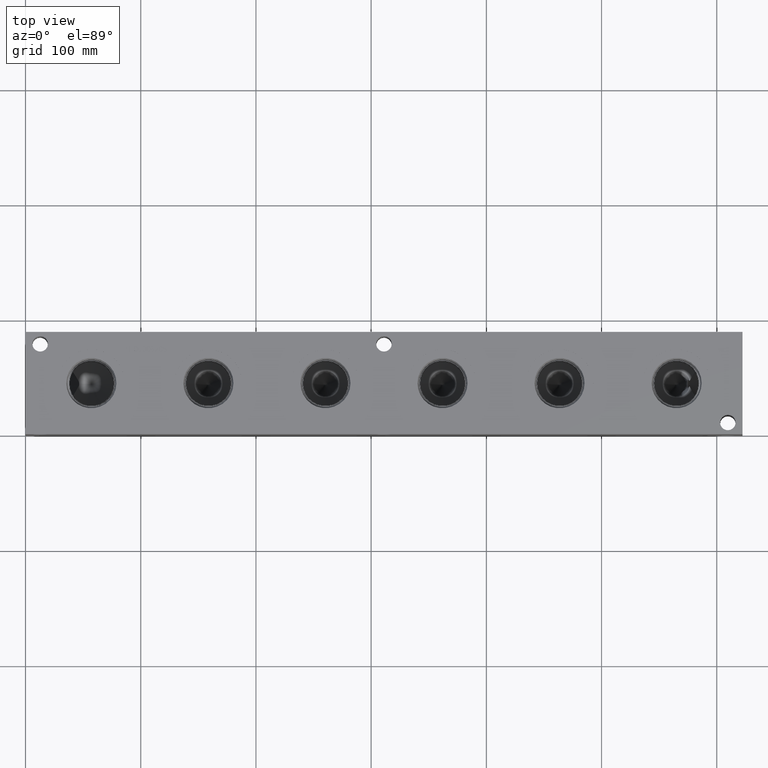
[diagram: clean part render]
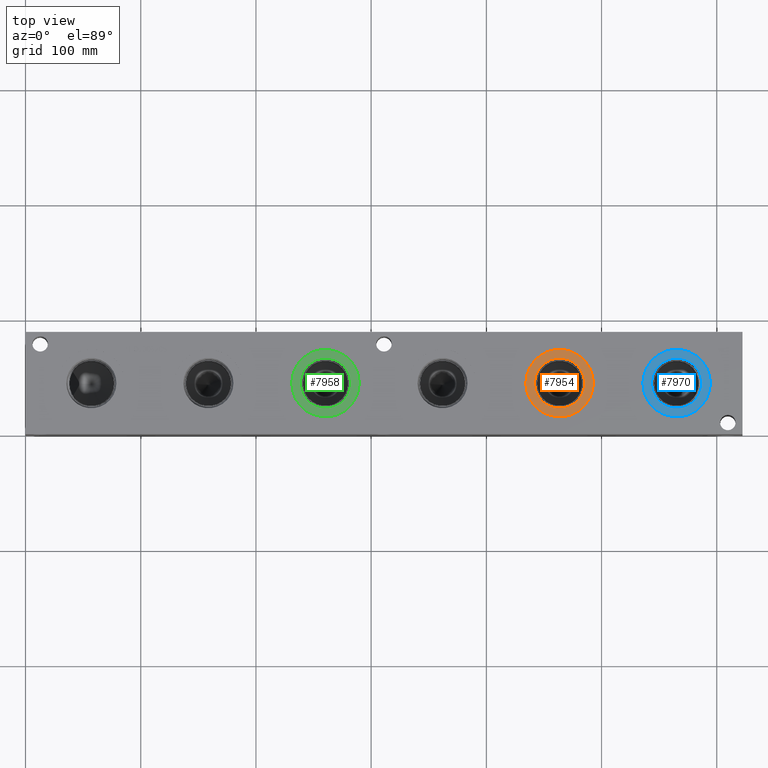
[diagram: same view with three faces highlighted in distinct colors, each labeled with its STEP entity id]
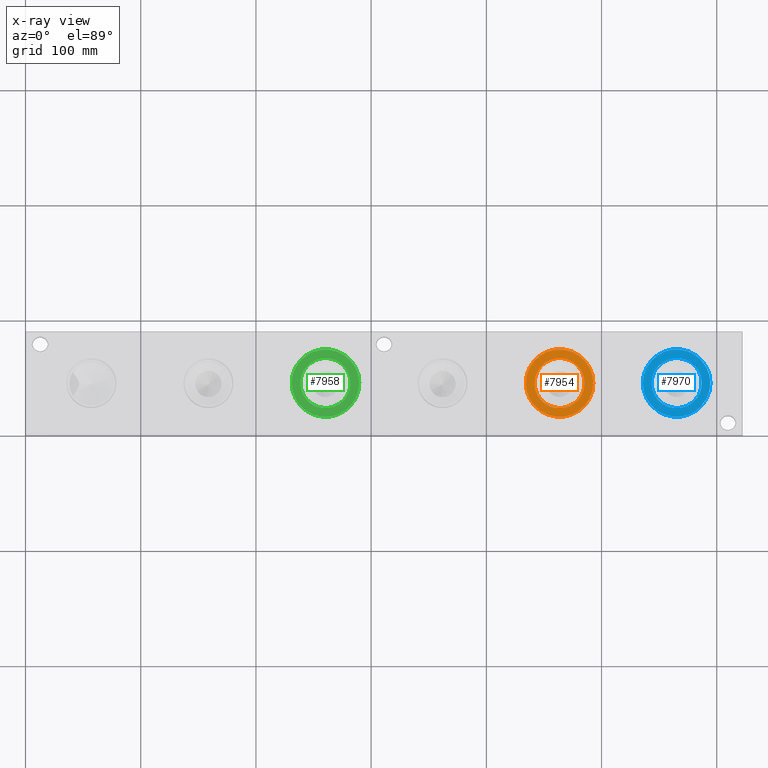
[diagram: x-ray of the same camera — body ghosted, the three highlighted faces saturated]
A machine part, top view with three faces highlighted in distinct colors.
The next image is the same camera in x-ray (body ghosted, the three faces saturated) — at least one of them is partly hidden behind the body in this view.
Their STEP definitions:

[orange] entity #7954 — the highlighted planar face has unit normal (0, 0, 1).
#203=CIRCLE('',#8373,29.2862);
#204=CIRCLE('',#8374,29.2862);
#205=CIRCLE('',#8375,21.7551);
#314=FACE_BOUND('',#1501,.T.);
#1045=FACE_OUTER_BOUND('',#1500,.T.);
#1500=EDGE_LOOP('',(#6791,#6792));
#1501=EDGE_LOOP('',(#6793));
#3654=VERTEX_POINT('',#13719);
#3655=VERTEX_POINT('',#13720);
#3656=VERTEX_POINT('',#13723);
#4731=EDGE_CURVE('',#3654,#3655,#203,.T.);
#4732=EDGE_CURVE('',#3655,#3654,#204,.T.);
#4733=EDGE_CURVE('',#3656,#3656,#205,.T.);
#6791=ORIENTED_EDGE('',*,*,#4731,.T.);
#6792=ORIENTED_EDGE('',*,*,#4732,.T.);
#6793=ORIENTED_EDGE('',*,*,#4733,.F.);
#7282=PLANE('',#8372);
#7954=ADVANCED_FACE('',(#1045,#314),#7282,.T.);
#8372=AXIS2_PLACEMENT_3D('',#13718,#9850,#9851);
#8373=AXIS2_PLACEMENT_3D('',#13721,#9852,#9853);
#8374=AXIS2_PLACEMENT_3D('',#13722,#9854,#9855);
#8375=AXIS2_PLACEMENT_3D('',#13724,#9856,#9857);
#9850=DIRECTION('center_axis',(0.,0.,1.));
#9851=DIRECTION('ref_axis',(1.,0.,0.));
#9852=DIRECTION('center_axis',(0.,0.,1.));
#9853=DIRECTION('ref_axis',(1.,0.,0.));
#9854=DIRECTION('center_axis',(0.,0.,1.));
#9855=DIRECTION('ref_axis',(1.,0.,0.));
#9856=DIRECTION('center_axis',(0.,0.,1.));
#9857=DIRECTION('ref_axis',(1.,0.,0.));
#13718=CARTESIAN_POINT('Origin',(463.55,44.45,88.1126));
#13719=CARTESIAN_POINT('',(492.8362,44.45,88.1126));
#13720=CARTESIAN_POINT('',(434.2638,44.45,88.1126));
#13721=CARTESIAN_POINT('Origin',(463.55,44.45,88.1126));
#13722=CARTESIAN_POINT('Origin',(463.55,44.45,88.1126));
#13723=CARTESIAN_POINT('',(441.7949,44.45,88.1126));
#13724=CARTESIAN_POINT('Origin',(463.55,44.45,88.1126));

[blue] entity #7970 — the highlighted planar face has unit normal (0, 0, 1).
#215=CIRCLE('',#8401,29.2862);
#216=CIRCLE('',#8402,29.2862);
#217=CIRCLE('',#8403,21.7551);
#318=FACE_BOUND('',#1521,.T.);
#1061=FACE_OUTER_BOUND('',#1520,.T.);
#1520=EDGE_LOOP('',(#6863,#6864));
#1521=EDGE_LOOP('',(#6865));
#3670=VERTEX_POINT('',#13775);
#3671=VERTEX_POINT('',#13776);
#3672=VERTEX_POINT('',#13779);
#4755=EDGE_CURVE('',#3670,#3671,#215,.T.);
#4756=EDGE_CURVE('',#3671,#3670,#216,.T.);
#4757=EDGE_CURVE('',#3672,#3672,#217,.T.);
#6863=ORIENTED_EDGE('',*,*,#4755,.T.);
#6864=ORIENTED_EDGE('',*,*,#4756,.T.);
#6865=ORIENTED_EDGE('',*,*,#4757,.F.);
#7286=PLANE('',#8400);
#7970=ADVANCED_FACE('',(#1061,#318),#7286,.T.);
#8400=AXIS2_PLACEMENT_3D('',#13774,#9918,#9919);
#8401=AXIS2_PLACEMENT_3D('',#13777,#9920,#9921);
#8402=AXIS2_PLACEMENT_3D('',#13778,#9922,#9923);
#8403=AXIS2_PLACEMENT_3D('',#13780,#9924,#9925);
#9918=DIRECTION('center_axis',(0.,0.,1.));
#9919=DIRECTION('ref_axis',(1.,0.,0.));
#9920=DIRECTION('center_axis',(0.,0.,1.));
#9921=DIRECTION('ref_axis',(1.,0.,0.));
#9922=DIRECTION('center_axis',(0.,0.,1.));
#9923=DIRECTION('ref_axis',(1.,0.,0.));
#9924=DIRECTION('center_axis',(0.,0.,1.));
#9925=DIRECTION('ref_axis',(1.,0.,0.));
#13774=CARTESIAN_POINT('Origin',(565.15,44.45,88.1126));
#13775=CARTESIAN_POINT('',(594.4362,44.45,88.1126));
#13776=CARTESIAN_POINT('',(535.8638,44.45,88.1126));
#13777=CARTESIAN_POINT('Origin',(565.15,44.45,88.1126));
#13778=CARTESIAN_POINT('Origin',(565.15,44.45,88.1126));
#13779=CARTESIAN_POINT('',(543.3949,44.45,88.1126));
#13780=CARTESIAN_POINT('Origin',(565.15,44.45,88.1126));

[green] entity #7958 — the highlighted planar face has unit normal (0, 0, 1).
#206=CIRCLE('',#8380,29.2862);
#207=CIRCLE('',#8381,29.2862);
#208=CIRCLE('',#8382,21.7551);
#315=FACE_BOUND('',#1506,.T.);
#1049=FACE_OUTER_BOUND('',#1505,.T.);
#1505=EDGE_LOOP('',(#6808,#6809));
#1506=EDGE_LOOP('',(#6810));
#3658=VERTEX_POINT('',#13733);
#3659=VERTEX_POINT('',#13734);
#3660=VERTEX_POINT('',#13737);
#4737=EDGE_CURVE('',#3658,#3659,#206,.T.);
#4738=EDGE_CURVE('',#3659,#3658,#207,.T.);
#4739=EDGE_CURVE('',#3660,#3660,#208,.T.);
#6808=ORIENTED_EDGE('',*,*,#4737,.T.);
#6809=ORIENTED_EDGE('',*,*,#4738,.T.);
#6810=ORIENTED_EDGE('',*,*,#4739,.F.);
#7283=PLANE('',#8379);
#7958=ADVANCED_FACE('',(#1049,#315),#7283,.T.);
#8379=AXIS2_PLACEMENT_3D('',#13732,#9867,#9868);
#8380=AXIS2_PLACEMENT_3D('',#13735,#9869,#9870);
#8381=AXIS2_PLACEMENT_3D('',#13736,#9871,#9872);
#8382=AXIS2_PLACEMENT_3D('',#13738,#9873,#9874);
#9867=DIRECTION('center_axis',(0.,0.,1.));
#9868=DIRECTION('ref_axis',(1.,0.,0.));
#9869=DIRECTION('center_axis',(0.,0.,1.));
#9870=DIRECTION('ref_axis',(1.,0.,0.));
#9871=DIRECTION('center_axis',(0.,0.,1.));
#9872=DIRECTION('ref_axis',(1.,0.,0.));
#9873=DIRECTION('center_axis',(0.,0.,1.));
#9874=DIRECTION('ref_axis',(1.,0.,0.));
#13732=CARTESIAN_POINT('Origin',(260.35,44.45,88.1126));
#13733=CARTESIAN_POINT('',(289.6362,44.45,88.1126));
#13734=CARTESIAN_POINT('',(231.0638,44.45,88.1126));
#13735=CARTESIAN_POINT('Origin',(260.35,44.45,88.1126));
#13736=CARTESIAN_POINT('Origin',(260.35,44.45,88.1126));
#13737=CARTESIAN_POINT('',(238.5949,44.45,88.1126));
#13738=CARTESIAN_POINT('Origin',(260.35,44.45,88.1126));